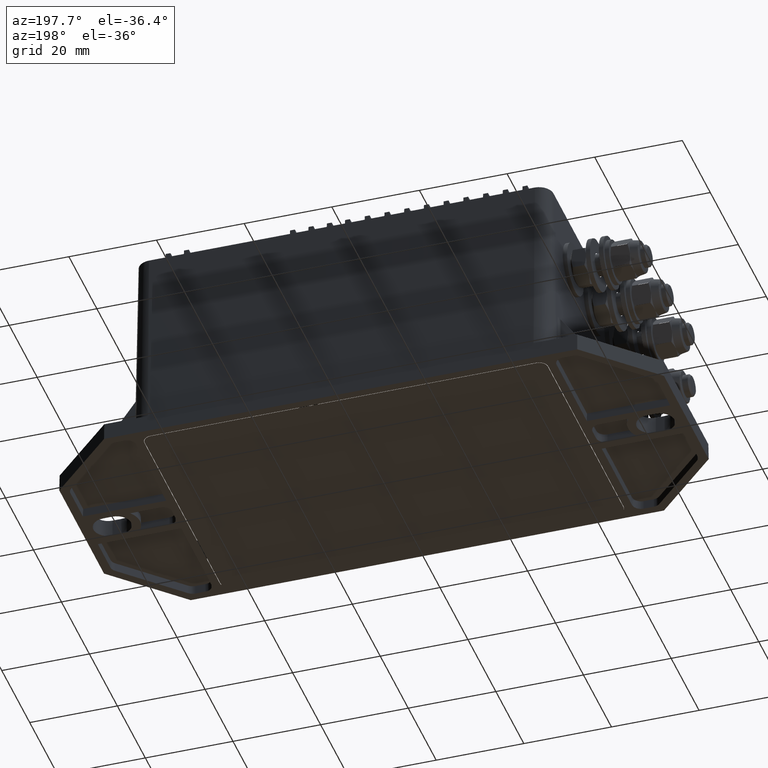
[diagram: clean part render]
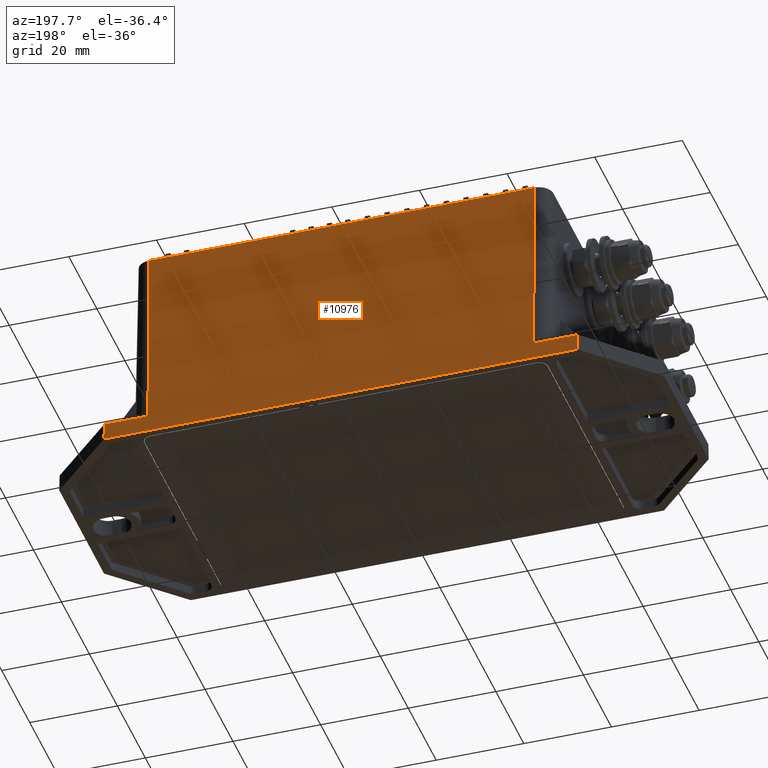
[diagram: same view with one face highlighted and labeled with its STEP entity id]
A machine part, auxiliary view. The second image highlights one B-rep face of the part: STEP entity #10976.
In plain terms, the highlighted planar face has unit normal (-0, 0.9998, 0.0175).
Its self-contained STEP definition (entity closure, byte-faithful):
#4338=CARTESIAN_POINT('',(53.971079501498373,30.930179740287397,4.0));
#4339=VERTEX_POINT('',#4338);
#4346=CARTESIAN_POINT('',(43.999999999999851,30.930179740287343,4.0));
#4347=VERTEX_POINT('',#4346);
#4348=CARTESIAN_POINT('',(43.999999999999851,30.930179740287354,4.0));
#4349=DIRECTION('',(1.0,0.0,0.0));
#4350=VECTOR('',#4349,9.971079501498522);
#4351=LINE('',#4348,#4350);
#4352=EDGE_CURVE('',#4347,#4339,#4351,.T.);
#4908=CARTESIAN_POINT('',(-44.000000000000171,30.930179740286889,4.0));
#4909=VERTEX_POINT('',#4908);
#4917=CARTESIAN_POINT('',(-53.971079501498679,30.930179740286846,4.0));
#4918=VERTEX_POINT('',#4917);
#4919=CARTESIAN_POINT('',(-53.971079501498679,30.930179740286846,4.0));
#4920=DIRECTION('',(1.0,0.0,0.0));
#4921=VECTOR('',#4920,9.971079501498522);
#4922=LINE('',#4919,#4921);
#4923=EDGE_CURVE('',#4918,#4909,#4922,.T.);
#6426=CARTESIAN_POINT('',(43.999999999999851,30.188339480838078,46.5));
#6427=VERTEX_POINT('',#6426);
#6435=CARTESIAN_POINT('',(-44.000000000000171,30.188339480837641,46.5));
#6436=VERTEX_POINT('',#6435);
#6437=CARTESIAN_POINT('',(-44.000000000000178,30.188339480837641,46.5));
#6438=DIRECTION('',(1.0,0.0,0.0));
#6439=VECTOR('',#6438,88.000000000000028);
#6440=LINE('',#6437,#6439);
#6441=EDGE_CURVE('',#6436,#6427,#6440,.T.);
#8995=CARTESIAN_POINT('',(53.999999999999844,31.000000000000281,2.266247E-017));
#8996=VERTEX_POINT('',#8995);
#9043=CARTESIAN_POINT('',(-54.000000000000163,30.999999999999723,-2.266247E-017));
#9044=VERTEX_POINT('',#9043);
#9051=CARTESIAN_POINT('',(53.999999999999844,31.000000000000281,2.266247E-017));
#9052=DIRECTION('',(-1.0,0.0,0.0));
#9053=VECTOR('',#9052,108.0);
#9054=LINE('',#9051,#9053);
#9055=EDGE_CURVE('',#8996,#9044,#9054,.T.);
#10800=CARTESIAN_POINT('',(-44.000000000000171,30.930179740286889,4.0));
#10801=DIRECTION('',(1.671611E-016,-0.017452406437284,0.999847695156391));
#10802=VECTOR('',#10801,42.506473941866076);
#10803=LINE('',#10800,#10802);
#10804=EDGE_CURVE('',#4909,#6436,#10803,.T.);
#10819=CARTESIAN_POINT('',(43.999999999999851,30.930179740287343,4.0));
#10820=DIRECTION('',(1.671611E-016,-0.017452406437284,0.999847695156391));
#10821=VECTOR('',#10820,42.506473941866076);
#10822=LINE('',#10819,#10821);
#10823=EDGE_CURVE('',#4347,#6427,#10822,.T.);
#10945=CARTESIAN_POINT('',(-54.000000000000163,30.999999999999719,-8.326673E-017));
#10946=DIRECTION('',(0.007228834559803,-0.017451950434423,0.999821570769976));
#10947=VECTOR('',#10946,4.000713844290784);
#10948=LINE('',#10945,#10947);
#10949=EDGE_CURVE('',#9044,#4918,#10948,.T.);
#10956=CARTESIAN_POINT('',(-54.000000000000163,30.999999999999723,-2.266247E-017));
#10957=DIRECTION('',(-5.182572E-015,0.999847695156391,0.017452406437284));
#10958=DIRECTION('',(-1.0,0.0,0.0));
#10959=AXIS2_PLACEMENT_3D('',#10956,#10957,#10958);
#10960=PLANE('',#10959);
#10961=ORIENTED_EDGE('',*,*,#4923,.T.);
#10962=ORIENTED_EDGE('',*,*,#10804,.T.);
#10963=ORIENTED_EDGE('',*,*,#6441,.T.);
#10964=ORIENTED_EDGE('',*,*,#10823,.F.);
#10965=ORIENTED_EDGE('',*,*,#4352,.T.);
#10966=CARTESIAN_POINT('',(53.999999999999851,31.000000000000266,-1.110223E-016));
#10967=DIRECTION('',(-0.007228834559801,-0.017451950434422,0.999821570769976));
#10968=VECTOR('',#10967,4.000713844290785);
#10969=LINE('',#10966,#10968);
#10970=EDGE_CURVE('',#8996,#4339,#10969,.T.);
#10971=ORIENTED_EDGE('',*,*,#10970,.F.);
#10972=ORIENTED_EDGE('',*,*,#9055,.T.);
#10973=ORIENTED_EDGE('',*,*,#10949,.T.);
#10974=EDGE_LOOP('',(#10961,#10962,#10963,#10964,#10965,#10971,#10972,#10973));
#10975=FACE_OUTER_BOUND('',#10974,.T.);
#10976=ADVANCED_FACE('',(#10975),#10960,.T.);